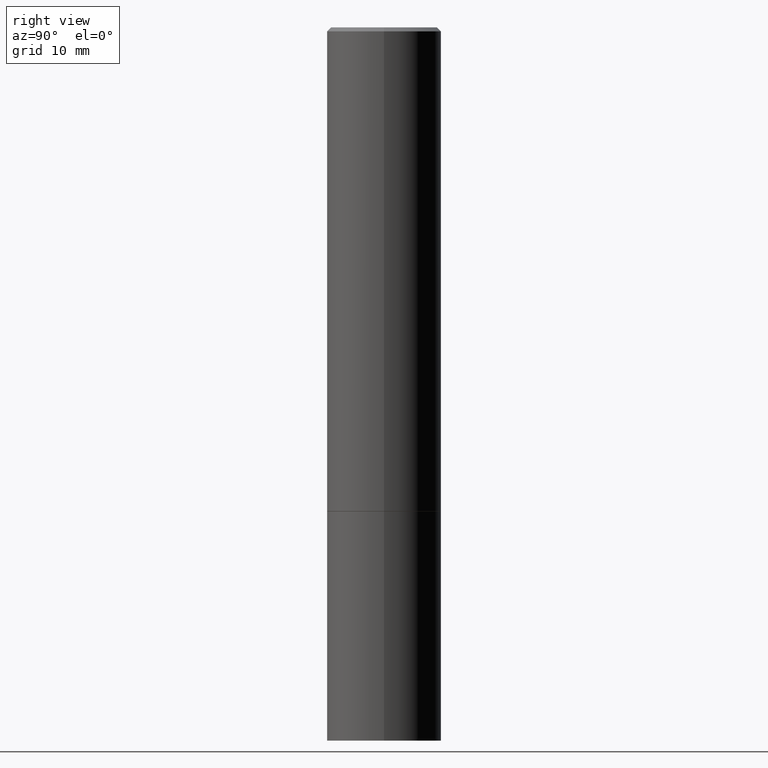
[diagram: clean part render]
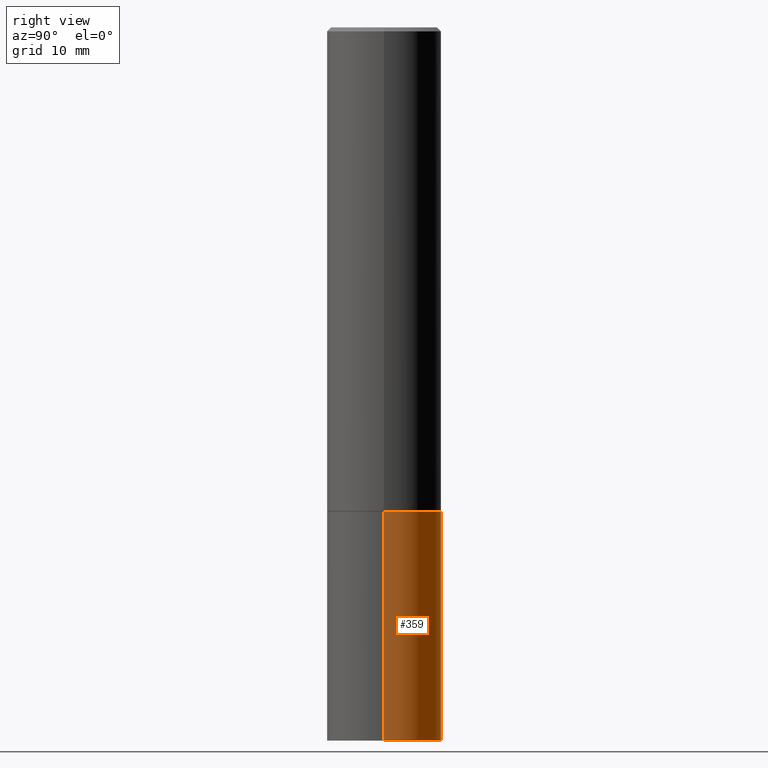
[diagram: same view with one face highlighted and labeled with its STEP entity id]
A machine part, right view. The second image highlights one B-rep face of the part: STEP entity #359.
In plain terms, the highlighted cylindrical surface (partial cylindrical patch) has radius 7.1437 mm, axis along (-0, 0, 1).
Its self-contained STEP definition (entity closure, byte-faithful):
#2 = DIRECTION ( 'NONE',  ( 1.000000000000000000, -6.982962677686269866E-15, 0.000000000000000000 ) ) ;
#3 = CARTESIAN_POINT ( 'NONE',  ( 0.2812500000000000000, -1.963958253099262512E-15, 1.371424718192607012E-29 ) ) ;
#15 = DIRECTION ( 'NONE',  ( -2.445468806185136877E-29, 3.491481338843145188E-15, 1.000000000000000000 ) ) ;
#22 = CIRCLE ( 'NONE', #67, 0.2812500000000000000 ) ;
#44 = CYLINDRICAL_SURFACE ( 'NONE', #286, 0.2812500000000000000 ) ;
#52 = VECTOR ( 'NONE', #196, 39.37007874015748143 ) ;
#67 = AXIS2_PLACEMENT_3D ( 'NONE', #142, #247, #2 ) ;
#89 = CARTESIAN_POINT ( 'NONE',  ( -0.2812500000000000000, -8.257824988526456379E-15, -3.500000000000000000 ) ) ;
#92 = DIRECTION ( 'NONE',  ( -2.445468806185136597E-29, 3.491481338843145583E-15, 1.000000000000000000 ) ) ;
#102 = ORIENTED_EDGE ( 'NONE', *, *, #324, .F. ) ;
#105 = DIRECTION ( 'NONE',  ( -2.445468806185136597E-29, 3.491481338843145583E-15, 1.000000000000000000 ) ) ;
#109 = VERTEX_POINT ( 'NONE', #89 ) ;
#121 = LINE ( 'NONE', #208, #328 ) ;
#132 = CIRCLE ( 'NONE', #357, 0.2812500000000000000 ) ;
#142 = CARTESIAN_POINT ( 'NONE',  ( 8.559140821647976968E-29, -1.222018468595100934E-14, -3.500000000000000000 ) ) ;
#144 = EDGE_CURVE ( 'NONE', #189, #109, #22, .T. ) ;
#160 = EDGE_CURVE ( 'NONE', #189, #246, #342, .T. ) ;
#161 = DIRECTION ( 'NONE',  ( 1.000000000000000000, -6.982962677686266711E-15, 4.876176775795935793E-29 ) ) ;
#164 = CARTESIAN_POINT ( 'NONE',  ( -0.2812500000000000000, -8.257824988526456379E-15, -2.374999999999999556 ) ) ;
#170 = EDGE_LOOP ( 'NONE', ( #366, #309, #102, #277 ) ) ;
#180 = FACE_OUTER_BOUND ( 'NONE', #170, .T. ) ;
#189 = VERTEX_POINT ( 'NONE', #351 ) ;
#196 = DIRECTION ( 'NONE',  ( -2.445468806185136877E-29, 3.491481338843145188E-15, 1.000000000000000000 ) ) ;
#208 = CARTESIAN_POINT ( 'NONE',  ( -0.2812500000000000000, 1.998401444325281773E-15, -1.383450494134192269E-29 ) ) ;
#231 = CARTESIAN_POINT ( 'NONE',  ( 5.807988414689698296E-29, -8.292268179752468540E-15, -2.374999999999999556 ) ) ;
#232 = CARTESIAN_POINT ( 'NONE',  ( 0.2812500000000000000, -1.025622643285173184E-14, -2.374999999999999556 ) ) ;
#246 = VERTEX_POINT ( 'NONE', #232 ) ;
#247 = DIRECTION ( 'NONE',  ( -2.445468806185136597E-29, 3.491481338843145583E-15, 1.000000000000000000 ) ) ;
#277 = ORIENTED_EDGE ( 'NONE', *, *, #160, .F. ) ;
#286 = AXIS2_PLACEMENT_3D ( 'NONE', #330, #105, #161 ) ;
#293 = EDGE_CURVE ( 'NONE', #109, #363, #121, .T. ) ;
#309 = ORIENTED_EDGE ( 'NONE', *, *, #293, .T. ) ;
#324 = EDGE_CURVE ( 'NONE', #246, #363, #132, .T. ) ;
#328 = VECTOR ( 'NONE', #15, 39.37007874015748143 ) ;
#330 = CARTESIAN_POINT ( 'NONE',  ( 0.000000000000000000, 0.000000000000000000, 0.000000000000000000 ) ) ;
#342 = LINE ( 'NONE', #3, #52 ) ;
#351 = CARTESIAN_POINT ( 'NONE',  ( 0.2812500000000000000, -1.418414293905027264E-14, -3.500000000000000000 ) ) ;
#354 = DIRECTION ( 'NONE',  ( 1.000000000000000000, -6.982962677686269866E-15, 0.000000000000000000 ) ) ;
#357 = AXIS2_PLACEMENT_3D ( 'NONE', #231, #92, #354 ) ;
#359 = ADVANCED_FACE ( 'NONE', ( #180 ), #44, .T. ) ;
#363 = VERTEX_POINT ( 'NONE', #164 ) ;
#366 = ORIENTED_EDGE ( 'NONE', *, *, #144, .T. ) ;